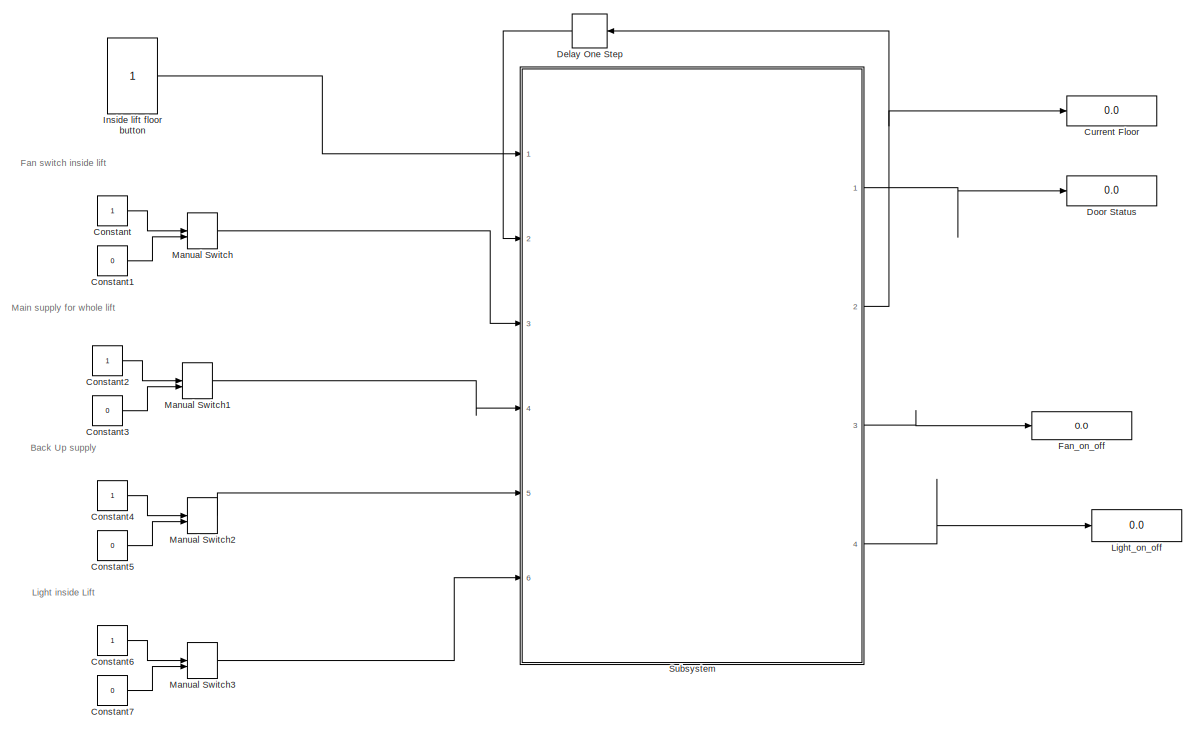
[diagram: root canvas - part 1/2, most of the canvas]
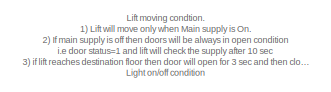
[diagram: root canvas - part 2/2, top left region]
MODEL slx_bc8f1403f6e1
KIND model
CONFIG AbsTol = auto
CONFIG EnableMultiTasking = off
CONFIG FixedStep = auto
CONFIG MaxStep = auto
CONFIG MinStep = auto
CONFIG RelTol = 1e-3
CONFIG SampleTimeConstraint = Unconstrained
CONFIG SolverName = VariableStepAuto
CONFIG StartTime = 0.0
CONFIG StopTime = 10.0
BLOCK [Constant] Constant
BLOCK [Constant] Constant1
  Value = 0
BLOCK [Constant] Constant2
BLOCK [Constant] Constant3
  Value = 0
BLOCK [Constant] Constant4
BLOCK [Constant] Constant5
  Value = 0
BLOCK [Constant] Constant6
BLOCK [Constant] Constant7
  Value = 0
BLOCK [Display] Current Floor 
  Decimation = 1
  Ports = [1]
BLOCK [Delay] Delay One Step
  DelayLength = 1
  InputPortMap = u0
  NameLocation = top
  Ports = [1, 1]
BLOCK [Display] Door Status
  Decimation = 1
  Ports = [1]
BLOCK [Display] Fan_on_off
  Decimation = 1
  Ports = [1]
BLOCK [Constant] Inside lift floor button
BLOCK [Display] Light_on_off
  Decimation = 1
  Ports = [1]
BLOCK [ManualSwitch] Manual Switch
BLOCK [ManualSwitch] Manual Switch1
BLOCK [ManualSwitch] Manual Switch2
BLOCK [ManualSwitch] Manual Switch3
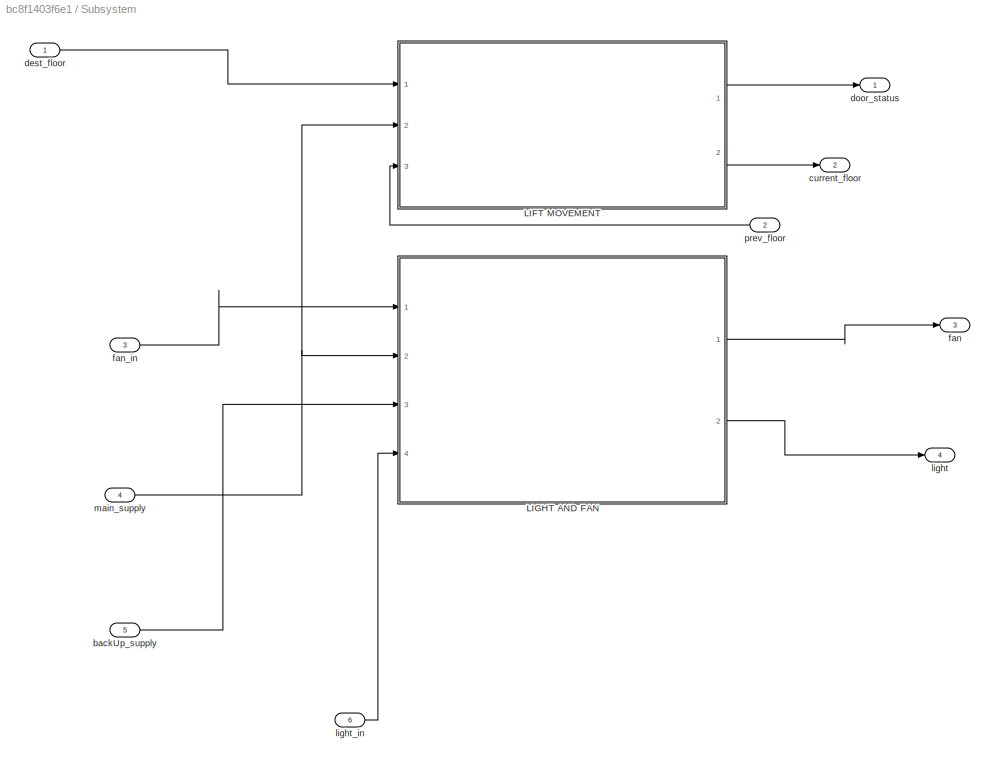
BLOCK [SubSystem] Subsystem
  Ports = [6, 4]
  RequestExecContextInheritance = off
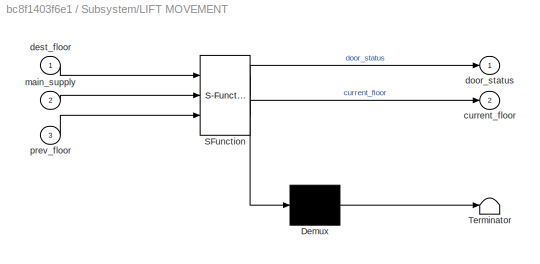
BLOCK [SubSystem] Subsystem/LIFT MOVEMENT
  ErrorFcn = Stateflow.Translate.translate
  PermitHierarchicalResolution = ExplicitOnly
  Ports = [3, 2]
  RequestExecContextInheritance = off
  SFBlockType = Chart
  TreatAsAtomicUnit = on
BLOCK [Demux] Subsystem/LIFT MOVEMENT/ Demux 
  Outputs = 1
  Ports = [1, 1]
BLOCK [S-Function] Subsystem/LIFT MOVEMENT/ SFunction 
  EnableBusSupport = on
  FunctionName = sf_sfun
  PortCounts = [3 3]
  Ports = [3, 3]
  SFcnIsStateOwnerBlock = off
  SFunctionDeploymentMode = off
  Tag = Stateflow S-Function 1
BLOCK [Terminator] Subsystem/LIFT MOVEMENT/ Terminator 
BLOCK [Outport] Subsystem/LIFT MOVEMENT/current_floor
  Port = 2
BLOCK [Inport] Subsystem/LIFT MOVEMENT/dest_floor
BLOCK [Outport] Subsystem/LIFT MOVEMENT/door_status
BLOCK [Inport] Subsystem/LIFT MOVEMENT/main_supply
  Port = 2
BLOCK [Inport] Subsystem/LIFT MOVEMENT/prev_floor
  Port = 3
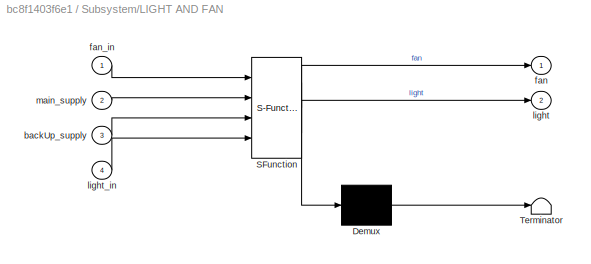
BLOCK [SubSystem] Subsystem/LIGHT AND FAN
  ErrorFcn = Stateflow.Translate.translate
  PermitHierarchicalResolution = ExplicitOnly
  Ports = [4, 2]
  RequestExecContextInheritance = off
  SFBlockType = Chart
  TreatAsAtomicUnit = on
BLOCK [Demux] Subsystem/LIGHT AND FAN/ Demux 
  Outputs = 1
  Ports = [1, 1]
BLOCK [S-Function] Subsystem/LIGHT AND FAN/ SFunction 
  EnableBusSupport = on
  FunctionName = sf_sfun
  PortCounts = [4 3]
  Ports = [4, 3]
  SFcnIsStateOwnerBlock = off
  SFunctionDeploymentMode = off
  Tag = Stateflow S-Function 3
BLOCK [Terminator] Subsystem/LIGHT AND FAN/ Terminator 
BLOCK [Inport] Subsystem/LIGHT AND FAN/backUp_supply
  Port = 3
BLOCK [Outport] Subsystem/LIGHT AND FAN/fan
BLOCK [Inport] Subsystem/LIGHT AND FAN/fan_in
BLOCK [Outport] Subsystem/LIGHT AND FAN/light
  Port = 2
BLOCK [Inport] Subsystem/LIGHT AND FAN/light_in
  Port = 4
BLOCK [Inport] Subsystem/LIGHT AND FAN/main_supply
  Port = 2
BLOCK [Inport] Subsystem/backUp_supply
  Port = 5
BLOCK [Outport] Subsystem/current_floor
  Port = 2
BLOCK [Inport] Subsystem/dest_floor
BLOCK [Outport] Subsystem/door_status
BLOCK [Outport] Subsystem/fan
  Port = 3
BLOCK [Inport] Subsystem/fan_in
  Port = 3
BLOCK [Outport] Subsystem/light
  Port = 4
BLOCK [Inport] Subsystem/light_in
  Port = 6
BLOCK [Inport] Subsystem/main_supply
  Port = 4
BLOCK [Inport] Subsystem/prev_floor
  Port = 2
ANNOTATION (root): Lift moving condtion. 1) Lift will move only when Main supply is On. 2) If main supply is off then doors will be always in open condition i.e door status=1 and lift will check the supply after 10 sec 3) if lift reaches destination floor then door will open for 3 sec and then close Light on/off condition 1)If either of main or back up supply is on then lift light will be turned on if switch pressed...<+175ch>
ANNOTATION (root): Back Up supply
ANNOTATION (root): Fan switch inside lift
ANNOTATION (root): Light inside Lift
ANNOTATION (root): Main supply for whole lift
LINE Constant1:1 -> Manual Switch:2
LINE Constant2:1 -> Manual Switch1:1
LINE Constant3:1 -> Manual Switch1:2
LINE Constant4:1 -> Manual Switch2:1
LINE Constant5:1 -> Manual Switch2:2
LINE Constant6:1 -> Manual Switch3:1
LINE Constant7:1 -> Manual Switch3:2
LINE Constant:1 -> Manual Switch:1
LINE Delay One Step:1 -> Subsystem:2
LINE Inside lift floor button:1 -> Subsystem:1
LINE Manual Switch1:1 -> Subsystem:4
LINE Manual Switch2:1 -> Subsystem:5
LINE Manual Switch3:1 -> Subsystem:6
LINE Manual Switch:1 -> Subsystem:3
LINE Subsystem/LIFT MOVEMENT:1 -> Subsystem/door_status:1
LINE Subsystem/LIFT MOVEMENT:2 -> Subsystem/current_floor:1
LINE Subsystem/LIGHT AND FAN:1 -> Subsystem/fan:1
LINE Subsystem/LIGHT AND FAN:2 -> Subsystem/light:1
LINE Subsystem/backUp_supply:1 -> Subsystem/LIGHT AND FAN:3
LINE Subsystem/dest_floor:1 -> Subsystem/LIFT MOVEMENT:1
LINE Subsystem/fan_in:1 -> Subsystem/LIGHT AND FAN:1
LINE Subsystem/light_in:1 -> Subsystem/LIGHT AND FAN:4
NET Subsystem/main_supply:1 -> Subsystem/LIFT MOVEMENT:2, Subsystem/LIGHT AND FAN:2
LINE Subsystem/prev_floor:1 -> Subsystem/LIFT MOVEMENT:3
LINE Subsystem:1 -> Door Status:1
NET Subsystem:2 -> Current Floor :1, Delay One Step:1
LINE Subsystem:3 -> Fan_on_off:1
LINE Subsystem:4 -> Light_on_off:1
note: NET lines group one-source signal fan-out (src -> all destinations, sorted); 1:1 wires keep LINE
CHART Subsystem/LIGHT AND FAN states=7 transitions=6
  STATE_LABEL 'check_status\n'
  STATE_LABEL 'change_stat1=s(light_in2,fan_in2,main_supply2,backUp_supply2)'
  STATE_LABEL 'SCRIPT:\nfunction change_stat1=s(light_in2,fan_in2,main_supply2,backUp_supply2)\n\naVarTruthTableCondition_1 = false;\naVarTruthTableCondition_2 = false;\naVarTruthTableCondition_3 = false;\naVarTruthTableCondition_4 = false;\n\n\n% LIGHT INPUT CHANGED\n\naVarTruthTableCondition_1 = logical(light_in2==light_in);\n\n% FAN INPUT CHANGED\n\naVarTruthTableCondition_2 = logical(fan_in2==fan_in);\n\n% MAIN SUPPLY SUPPLY...<+2291ch>'
  STATE_LABEL '{change_stat=s(light_in,fan_in,main_supply,backUp_supply)}'
  STATE_LABEL 'change_stat1=s(light_in2,fan_in2,main_supply2,backUp_supply2)'
  STATE_LABEL 'SCRIPT:\nfunction change_stat1=s(light_in2,fan_in2,main_supply2,backUp_supply2)\n\naVarTruthTableCondition_1 = false;\naVarTruthTableCondition_2 = false;\naVarTruthTableCondition_3 = false;\naVarTruthTableCondition_4 = false;\n\n\n% LIGHT INPUT CHANGED\n\naVarTruthTableCondition_1 = logical(light_in2==light_in);\n\n% FAN INPUT CHANGED\n\naVarTruthTableCondition_2 = logical(fan_in2==fan_in);\n\n% MAIN SUPPLY SUPPLY...<+2291ch>'
  STATE_LABEL 'Fan_light'
  STATE_LABEL 'FanStatus'
  STATE_LABEL 'fan1 = f(fan_in1, main_supply1)'
  STATE_LABEL 'SCRIPT:\nfunction fan1 = f(fan_in1, main_supply1)\n\naVarTruthTableCondition_1 = false;\naVarTruthTableCondition_2 = false;\n\n\n% Fan switch from inside On\n\naVarTruthTableCondition_1 = logical(fan_in1==1);\n\n% Fan switch from outside On\n\naVarTruthTableCondition_2 = logical(main_supply1==1);\n\nif (aVarTruthTableCondition_1 && aVarTruthTableCondition_2)\n    A1();\nelseif (aVarTruthTableCondition_1 && ~aVarTr...<+346ch>'  <repeated x3 — deduplicated; at blocks: LIGHT AND FAN>
  STATE_LABEL '{fan=f(fan_in,main_supply)}'
  STATE_LABEL 'LightStatus'
  STATE_LABEL 'light1=L(light_in1,main_supply1,backUp_supply1)'
  STATE_LABEL 'SCRIPT:\nfunction light1=L(light_in1,main_supply1,backUp_supply1)\n\naVarTruthTableCondition_1 = false;\naVarTruthTableCondition_2 = false;\naVarTruthTableCondition_3 = false;\n\n\n% Condition #1\naVarTruthTableCondition_1 = logical(light_in1==1);\n\n% Condition #2\naVarTruthTableCondition_2 = logical(main_supply1==1);\n\n% Condition #3\naVarTruthTableCondition_3 = logical(backUp_supply1==1);\n\nif (~aVarTruthTabl...<+852ch>'  <repeated x3 — deduplicated; at blocks: LIGHT AND FAN>
  STATE_LABEL '{light=L(light_in,main_supply,backUp_supply)}'
  STATE_LABEL 'FanStatus'
  STATE_LABEL 'fan1 = f(fan_in1, main_supply1)'
  STATE_LABEL '{fan=f(fan_in,main_supply)}'
  STATE_LABEL 'fan1 = f(fan_in1, main_supply1)'
  STATE_LABEL 'LightStatus'
  STATE_LABEL 'light1=L(light_in1,main_supply1,backUp_supply1)'
  STATE_LABEL '{light=L(light_in,main_supply,backUp_supply)}'
  STATE_LABEL 'light1=L(light_in1,main_supply1,backUp_supply1)'
CHART Subsystem/LIFT MOVEMENT states=5 transitions=22
  STATE_LABEL 'moving_down\ncurrent_floor=current_floor-1;'
  STATE_LABEL 'moving_up\ncurrent_floor=current_floor+1;'
  STATE_LABEL 'floor_status\n\n'
  STATE_LABEL 'LIFT_OFF\ncurrent_floor=prev_floor;\ndelay=0;'
  STATE_LABEL 'Doors\n'
  STATE_LABEL '[main_supply==0]'
  STATE_LABEL '{delay=10;}'
  STATE_LABEL '{delay=3;}'
  STATE_LABEL '[delay>0]'
  STATE_LABEL '{delay=delay-1;}'
CHART  states=0 transitions=0
CHART  states=0 transitions=0
